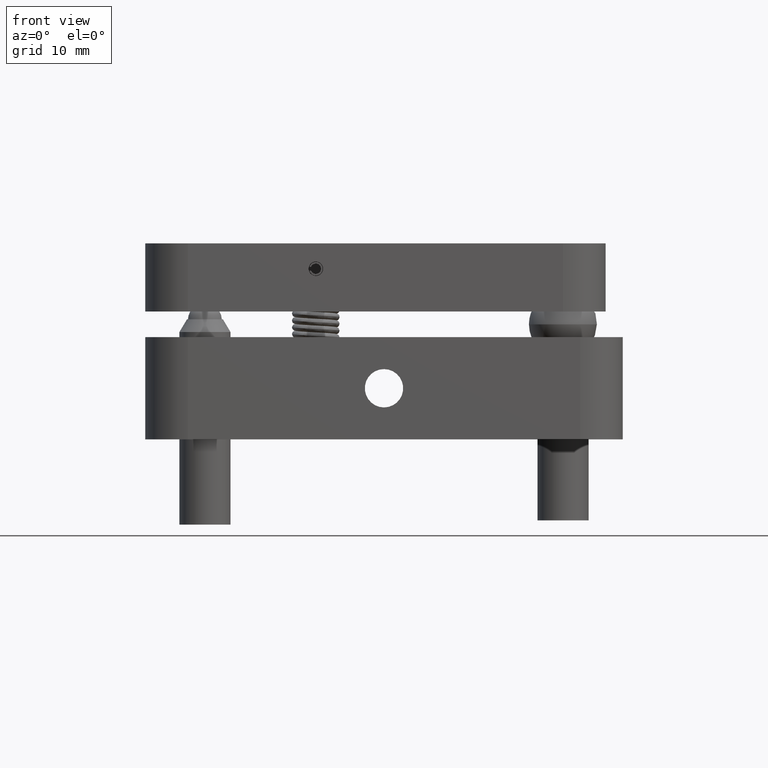
[diagram: clean part render]
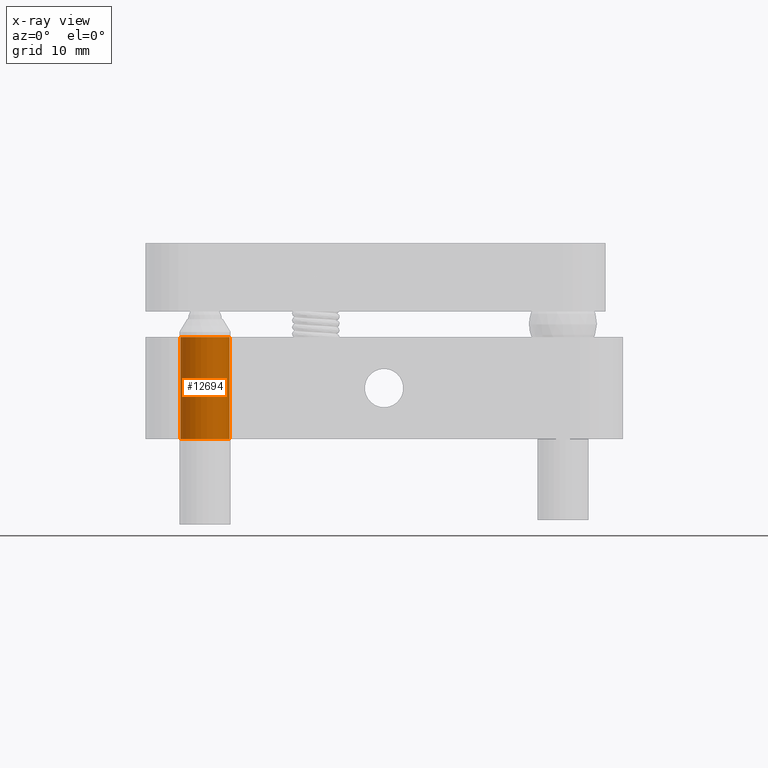
[diagram: x-ray — body ghosted, one internal face saturated and labeled with its STEP entity id]
A machine part, front view, then the same camera in x-ray: the body is ghosted and one INTERNAL B-rep face — a face not visible from any outside direction — is saturated and labeled: STEP entity #12694.
In plain terms, the highlighted cylindrical surface (edge-blend (fillet) strip) has radius 2.875 mm, axis along (-0, -0, -1).
Its self-contained STEP definition (entity closure, byte-faithful):
#626 = VECTOR ( 'NONE', #12474, 1000.000000000000000 ) ;
#921 = LINE ( 'NONE', #5046, #626 ) ;
#3420 = LINE ( 'NONE', #6760, #8868 ) ;
#3604 = VERTEX_POINT ( 'NONE', #8236 ) ;
#4665 = DIRECTION ( 'NONE',  ( -3.237471744166685214E-17, -4.280213365522105985E-17, -1.000000000000000000 ) ) ;
#4677 = EDGE_CURVE ( 'NONE', #3604, #10505, #4896, .T. ) ;
#4896 = CIRCLE ( 'NONE', #13112, 2.875000000000007550 ) ;
#4901 = ORIENTED_EDGE ( 'NONE', *, *, #11919, .F. ) ;
#4949 = CARTESIAN_POINT ( 'NONE',  ( -20.99999999999998934, -21.00000000000000355, -3.000000000000019984 ) ) ;
#5012 = EDGE_CURVE ( 'NONE', #11412, #11376, #8014, .T. ) ;
#5046 = CARTESIAN_POINT ( 'NONE',  ( -23.87259874164555384, -20.88252034432983706, -3.000000000000018208 ) ) ;
#5383 = CARTESIAN_POINT ( 'NONE',  ( -18.12740125835440708, -21.11747965567017360, -15.00000000000000355 ) ) ;
#5449 = FACE_OUTER_BOUND ( 'NONE', #6943, .T. ) ;
#6295 = CYLINDRICAL_SURFACE ( 'NONE', #7569, 2.875000000000007550 ) ;
#6426 = CARTESIAN_POINT ( 'NONE',  ( -20.99999999999998934, -21.00000000000000355, -3.000000000000019984 ) ) ;
#6760 = CARTESIAN_POINT ( 'NONE',  ( -18.12740125835442839, -21.11747965567017360, -3.000000000000021760 ) ) ;
#6943 = EDGE_LOOP ( 'NONE', ( #9739, #9075, #13721, #4901 ) ) ;
#6972 = DIRECTION ( 'NONE',  ( 0.9991647797028013755, -0.04086248892875386091, -6.033820786006269940E-16 ) ) ;
#7569 = AXIS2_PLACEMENT_3D ( 'NONE', #6426, #7613, #10582 ) ;
#7613 = DIRECTION ( 'NONE',  ( -3.237471744166685214E-17, -4.280213365522105985E-17, -1.000000000000000000 ) ) ;
#8014 = CIRCLE ( 'NONE', #11334, 2.875000000000007550 ) ;
#8218 = DIRECTION ( 'NONE',  ( 3.237471744166685214E-17, 4.280213365522105985E-17, 1.000000000000000000 ) ) ;
#8236 = CARTESIAN_POINT ( 'NONE',  ( -23.87259874164551832, -20.88252034432983706, -15.00000000000000355 ) ) ;
#8868 = VECTOR ( 'NONE', #4665, 1000.000000000000000 ) ;
#9075 = ORIENTED_EDGE ( 'NONE', *, *, #12833, .T. ) ;
#9510 = CARTESIAN_POINT ( 'NONE',  ( -18.12740125835443550, -21.11747965567017360, -3.000000000000019984 ) ) ;
#9739 = ORIENTED_EDGE ( 'NONE', *, *, #5012, .T. ) ;
#10505 = VERTEX_POINT ( 'NONE', #5383 ) ;
#10582 = DIRECTION ( 'NONE',  ( -0.9991647797028013755, 0.04086248892875386091, 6.033820786006269940E-16 ) ) ;
#11192 = CARTESIAN_POINT ( 'NONE',  ( -20.99999999999996447, -21.00000000000001066, -15.00000000000000355 ) ) ;
#11334 = AXIS2_PLACEMENT_3D ( 'NONE', #4949, #13290, #6972 ) ;
#11376 = VERTEX_POINT ( 'NONE', #9510 ) ;
#11397 = CARTESIAN_POINT ( 'NONE',  ( -23.87259874164554674, -20.88252034432983706, -3.000000000000019984 ) ) ;
#11412 = VERTEX_POINT ( 'NONE', #11397 ) ;
#11919 = EDGE_CURVE ( 'NONE', #11412, #3604, #921, .T. ) ;
#12450 = DIRECTION ( 'NONE',  ( 0.9991647797028013755, -0.04086248892875386091, -6.033820786006269940E-16 ) ) ;
#12474 = DIRECTION ( 'NONE',  ( -3.237471744166685214E-17, -4.280213365522105985E-17, -1.000000000000000000 ) ) ;
#12694 = ADVANCED_FACE ( 'NONE', ( #5449 ), #6295, .F. ) ;
#12833 = EDGE_CURVE ( 'NONE', #11376, #10505, #3420, .T. ) ;
#13112 = AXIS2_PLACEMENT_3D ( 'NONE', #11192, #8218, #12450 ) ;
#13290 = DIRECTION ( 'NONE',  ( 3.237471744166685214E-17, 4.280213365522105985E-17, 1.000000000000000000 ) ) ;
#13721 = ORIENTED_EDGE ( 'NONE', *, *, #4677, .F. ) ;